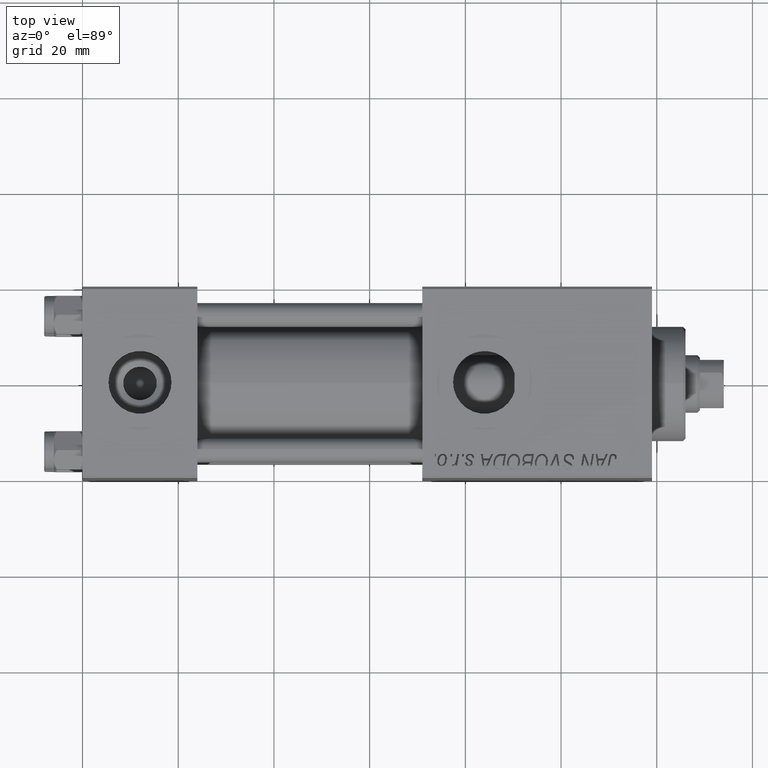
[diagram: clean part render]
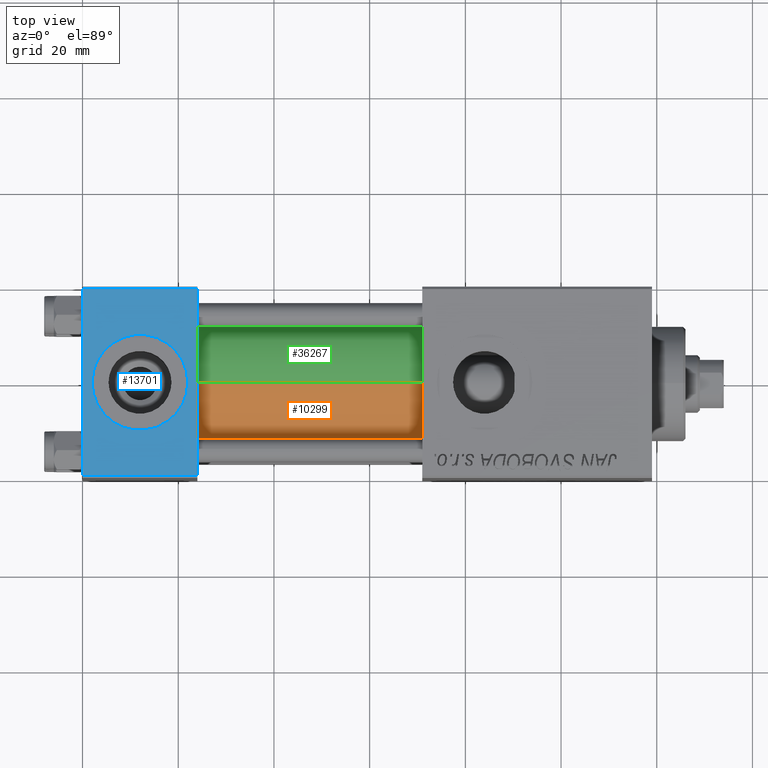
[diagram: same view with three faces highlighted in distinct colors, each labeled with its STEP entity id]
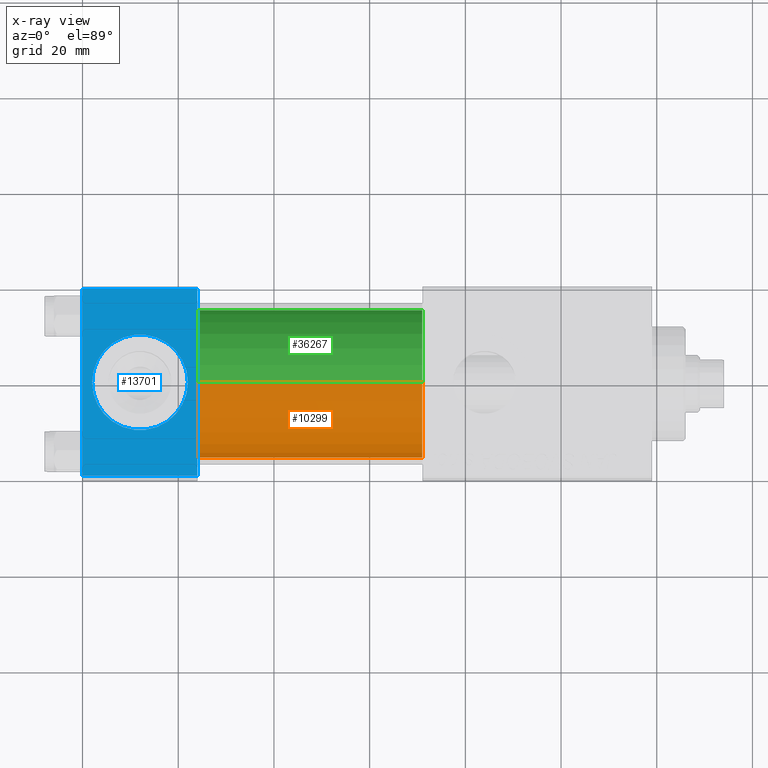
[diagram: x-ray of the same camera — body ghosted, the three highlighted faces saturated]
A machine part, top view with three faces highlighted in distinct colors.
The next image is the same camera in x-ray (body ghosted, the three faces saturated) — at least one of them is partly hidden behind the body in this view.
Their STEP definitions:

[orange] entity #10299 — the highlighted cylindrical surface (partial cylindrical patch) has radius 15.5 mm, axis along (-1, -0, -0).
#109 = LINE ( 'NONE', #5107, #15944 ) ;
#214 = ORIENTED_EDGE ( 'NONE', *, *, #13617, .T. ) ;
#247 = EDGE_CURVE ( 'NONE', #28785, #18094, #37705, .T. ) ;
#2215 = EDGE_LOOP ( 'NONE', ( #32558, #28471, #15158, #214 ) ) ;
#2857 = CARTESIAN_POINT ( 'NONE',  ( 71.00000000000001421, -7.038826752868131828E-16, -15.50000000000000000 ) ) ;
#4628 = CIRCLE ( 'NONE', #47648, 15.50000000000000000 ) ;
#5107 = CARTESIAN_POINT ( 'NONE',  ( 71.00000000000001421, -2.602085213965210642E-15, 15.50000000000000000 ) ) ;
#6233 = CIRCLE ( 'NONE', #49250, 15.50000000000000000 ) ;
#10299 = ADVANCED_FACE ( 'NONE', ( #20292 ), #30987, .T. ) ;
#10490 = VERTEX_POINT ( 'NONE', #45876 ) ;
#10665 = CARTESIAN_POINT ( 'NONE',  ( 71.00000000000001421, -7.038826752868131828E-16, -15.50000000000000000 ) ) ;
#13617 = EDGE_CURVE ( 'NONE', #49100, #18094, #6233, .T. ) ;
#13805 = EDGE_CURVE ( 'NONE', #10490, #49100, #109, .T. ) ;
#15158 = ORIENTED_EDGE ( 'NONE', *, *, #13805, .T. ) ;
#15159 = EDGE_CURVE ( 'NONE', #10490, #28785, #4628, .T. ) ;
#15723 = DIRECTION ( 'NONE',  ( 0.000000000000000000, 0.000000000000000000, 1.000000000000000000 ) ) ;
#15944 = VECTOR ( 'NONE', #47575, 1000.000000000000000 ) ;
#16423 = DIRECTION ( 'NONE',  ( 1.000000000000000000, 0.000000000000000000, 0.000000000000000000 ) ) ;
#18094 = VERTEX_POINT ( 'NONE', #23659 ) ;
#18850 = DIRECTION ( 'NONE',  ( -1.000000000000000000, -0.000000000000000000, -0.000000000000000000 ) ) ;
#20292 = FACE_OUTER_BOUND ( 'NONE', #2215, .T. ) ;
#23659 = CARTESIAN_POINT ( 'NONE',  ( 24.00000000000000000, -7.038826752868131828E-16, -15.50000000000000000 ) ) ;
#23793 = DIRECTION ( 'NONE',  ( 0.000000000000000000, 0.000000000000000000, 1.000000000000000000 ) ) ;
#23853 = DIRECTION ( 'NONE',  ( -1.000000000000000000, -0.000000000000000000, -0.000000000000000000 ) ) ;
#24961 = VECTOR ( 'NONE', #18850, 1000.000000000000000 ) ;
#27422 = CARTESIAN_POINT ( 'NONE',  ( 24.00000000000000000, -2.602085213965210642E-15, 15.50000000000000000 ) ) ;
#28471 = ORIENTED_EDGE ( 'NONE', *, *, #15159, .F. ) ;
#28785 = VERTEX_POINT ( 'NONE', #10665 ) ;
#29521 = DIRECTION ( 'NONE',  ( 1.000000000000000000, 0.000000000000000000, 0.000000000000000000 ) ) ;
#30874 = AXIS2_PLACEMENT_3D ( 'NONE', #39379, #23853, #15723 ) ;
#30987 = CYLINDRICAL_SURFACE ( 'NONE', #30874, 15.50000000000000000 ) ;
#32558 = ORIENTED_EDGE ( 'NONE', *, *, #247, .F. ) ;
#35519 = CARTESIAN_POINT ( 'NONE',  ( 24.00000000000000000, -2.602085213965210642E-15, 0.000000000000000000 ) ) ;
#37705 = LINE ( 'NONE', #2857, #24961 ) ;
#38568 = DIRECTION ( 'NONE',  ( 0.000000000000000000, 0.000000000000000000, -1.000000000000000000 ) ) ;
#39379 = CARTESIAN_POINT ( 'NONE',  ( 71.00000000000001421, -2.602085213965210642E-15, 0.000000000000000000 ) ) ;
#41205 = CARTESIAN_POINT ( 'NONE',  ( 71.00000000000001421, -2.602085213965210642E-15, 0.000000000000000000 ) ) ;
#45876 = CARTESIAN_POINT ( 'NONE',  ( 71.00000000000001421, -2.602085213965210642E-15, 15.50000000000000000 ) ) ;
#47575 = DIRECTION ( 'NONE',  ( -1.000000000000000000, -0.000000000000000000, -0.000000000000000000 ) ) ;
#47648 = AXIS2_PLACEMENT_3D ( 'NONE', #41205, #29521, #38568 ) ;
#49100 = VERTEX_POINT ( 'NONE', #27422 ) ;
#49250 = AXIS2_PLACEMENT_3D ( 'NONE', #35519, #16423, #23793 ) ;

[blue] entity #13701 — the highlighted planar face has unit normal (0, 0, -1).
#669 = ORIENTED_EDGE ( 'NONE', *, *, #14771, .T. ) ;
#935 = CARTESIAN_POINT ( 'NONE',  ( 22.00000000000000000, 1.540743955509788682E-30, 19.99999999999999645 ) ) ;
#1599 = CARTESIAN_POINT ( 'NONE',  ( 2.000000000000003553, 1.224646799147354440E-15, 19.99999999999999645 ) ) ;
#3159 = DIRECTION ( 'NONE',  ( 0.000000000000000000, 1.000000000000000000, 2.602085213965210149E-16 ) ) ;
#3935 = CARTESIAN_POINT ( 'NONE',  ( 24.00000000000000000, 19.50000000000000000, 20.00000000000000000 ) ) ;
#4272 = AXIS2_PLACEMENT_3D ( 'NONE', #7897, #27995, #23137 ) ;
#5006 = EDGE_CURVE ( 'NONE', #26411, #12805, #6276, .T. ) ;
#6276 = LINE ( 'NONE', #48496, #12952 ) ;
#6357 = VERTEX_POINT ( 'NONE', #27808 ) ;
#6507 = VERTEX_POINT ( 'NONE', #1599 ) ;
#7007 = AXIS2_PLACEMENT_3D ( 'NONE', #25312, #40825, #3159 ) ;
#7897 = CARTESIAN_POINT ( 'NONE',  ( 12.00000000000000000, 1.540743955509788682E-30, 19.99999999999999645 ) ) ;
#8770 = VECTOR ( 'NONE', #38181, 1000.000000000000000 ) ;
#9301 = FACE_OUTER_BOUND ( 'NONE', #24617, .T. ) ;
#9745 = DIRECTION ( 'NONE',  ( 1.000000000000000000, 0.000000000000000000, 0.000000000000000000 ) ) ;
#9984 = CARTESIAN_POINT ( 'NONE',  ( 0.000000000000000000, 20.00000000000000000, 20.00000000000000000 ) ) ;
#11889 = EDGE_CURVE ( 'NONE', #26411, #6357, #49581, .T. ) ;
#12805 = VERTEX_POINT ( 'NONE', #32070 ) ;
#12952 = VECTOR ( 'NONE', #21277, 1000.000000000000000 ) ;
#13460 = EDGE_LOOP ( 'NONE', ( #40323, #34057 ) ) ;
#13701 = ADVANCED_FACE ( 'NONE', ( #44148, #9301 ), #20982, .F. ) ;
#14771 = EDGE_CURVE ( 'NONE', #36256, #6357, #43589, .T. ) ;
#15484 = DIRECTION ( 'NONE',  ( 0.000000000000000000, -1.000000000000000000, -2.602085213965210149E-16 ) ) ;
#17978 = EDGE_CURVE ( 'NONE', #12805, #36256, #29318, .T. ) ;
#18789 = CARTESIAN_POINT ( 'NONE',  ( 24.00000000000000000, 20.00000000000000000, 20.00000000000000000 ) ) ;
#20982 = PLANE ( 'NONE',  #7007 ) ;
#21277 = DIRECTION ( 'NONE',  ( -1.000000000000000000, 0.000000000000000000, 0.000000000000000000 ) ) ;
#21436 = EDGE_CURVE ( 'NONE', #42310, #6507, #25023, .T. ) ;
#23137 = DIRECTION ( 'NONE',  ( 1.000000000000000000, 0.000000000000000000, 0.000000000000000000 ) ) ;
#23689 = DIRECTION ( 'NONE',  ( 0.000000000000000000, 0.000000000000000000, 1.000000000000000000 ) ) ;
#23759 = CIRCLE ( 'NONE', #4272, 9.999999999999998224 ) ;
#24617 = EDGE_LOOP ( 'NONE', ( #34245, #669, #36846, #34147 ) ) ;
#25023 = CIRCLE ( 'NONE', #30678, 9.999999999999998224 ) ;
#25312 = CARTESIAN_POINT ( 'NONE',  ( 24.00000000000000000, 20.00000000000000000, 20.00000000000000000 ) ) ;
#26411 = VERTEX_POINT ( 'NONE', #3935 ) ;
#27808 = CARTESIAN_POINT ( 'NONE',  ( 24.00000000000000000, -19.49999999999999289, 19.99999999999998934 ) ) ;
#27995 = DIRECTION ( 'NONE',  ( 0.000000000000000000, 0.000000000000000000, 1.000000000000000000 ) ) ;
#29318 = LINE ( 'NONE', #9984, #8770 ) ;
#30678 = AXIS2_PLACEMENT_3D ( 'NONE', #31085, #23689, #39222 ) ;
#31085 = CARTESIAN_POINT ( 'NONE',  ( 12.00000000000000000, 1.540743955509788682E-30, 19.99999999999999645 ) ) ;
#32070 = CARTESIAN_POINT ( 'NONE',  ( 0.000000000000000000, 19.50000000000000000, 20.00000000000000000 ) ) ;
#32896 = CARTESIAN_POINT ( 'NONE',  ( 24.00000000000000000, -19.49999999999999289, 19.99999999999998934 ) ) ;
#34057 = ORIENTED_EDGE ( 'NONE', *, *, #45200, .F. ) ;
#34147 = ORIENTED_EDGE ( 'NONE', *, *, #5006, .T. ) ;
#34245 = ORIENTED_EDGE ( 'NONE', *, *, #17978, .T. ) ;
#35501 = VECTOR ( 'NONE', #9745, 1000.000000000000000 ) ;
#36256 = VERTEX_POINT ( 'NONE', #36532 ) ;
#36532 = CARTESIAN_POINT ( 'NONE',  ( 0.000000000000000000, -19.49999999999999289, 19.99999999999998934 ) ) ;
#36846 = ORIENTED_EDGE ( 'NONE', *, *, #11889, .F. ) ;
#38181 = DIRECTION ( 'NONE',  ( 0.000000000000000000, -1.000000000000000000, -2.602085213965210149E-16 ) ) ;
#39222 = DIRECTION ( 'NONE',  ( 1.000000000000000000, 0.000000000000000000, 0.000000000000000000 ) ) ;
#40323 = ORIENTED_EDGE ( 'NONE', *, *, #21436, .F. ) ;
#40825 = DIRECTION ( 'NONE',  ( 0.000000000000000000, 2.602085213965210149E-16, -1.000000000000000000 ) ) ;
#42310 = VERTEX_POINT ( 'NONE', #935 ) ;
#42399 = VECTOR ( 'NONE', #15484, 1000.000000000000000 ) ;
#43589 = LINE ( 'NONE', #32896, #35501 ) ;
#44148 = FACE_BOUND ( 'NONE', #13460, .T. ) ;
#45200 = EDGE_CURVE ( 'NONE', #6507, #42310, #23759, .T. ) ;
#48496 = CARTESIAN_POINT ( 'NONE',  ( 0.000000000000000000, 19.50000000000000000, 20.00000000000000000 ) ) ;
#49581 = LINE ( 'NONE', #18789, #42399 ) ;

[green] entity #36267 — the highlighted cylindrical surface (partial cylindrical patch) has radius 15.5 mm, axis along (-1, -0, -0).
#109 = LINE ( 'NONE', #5107, #15944 ) ;
#247 = EDGE_CURVE ( 'NONE', #28785, #18094, #37705, .T. ) ;
#2857 = CARTESIAN_POINT ( 'NONE',  ( 71.00000000000001421, -7.038826752868131828E-16, -15.50000000000000000 ) ) ;
#5107 = CARTESIAN_POINT ( 'NONE',  ( 71.00000000000001421, -2.602085213965210642E-15, 15.50000000000000000 ) ) ;
#5201 = CARTESIAN_POINT ( 'NONE',  ( 71.00000000000001421, -2.602085213965210642E-15, 0.000000000000000000 ) ) ;
#7326 = EDGE_CURVE ( 'NONE', #18094, #49100, #50254, .T. ) ;
#7931 = ORIENTED_EDGE ( 'NONE', *, *, #13805, .F. ) ;
#8952 = ORIENTED_EDGE ( 'NONE', *, *, #7326, .T. ) ;
#10490 = VERTEX_POINT ( 'NONE', #45876 ) ;
#10573 = EDGE_LOOP ( 'NONE', ( #37805, #20916, #8952, #7931 ) ) ;
#10665 = CARTESIAN_POINT ( 'NONE',  ( 71.00000000000001421, -7.038826752868131828E-16, -15.50000000000000000 ) ) ;
#11308 = DIRECTION ( 'NONE',  ( 0.000000000000000000, 0.000000000000000000, 1.000000000000000000 ) ) ;
#12921 = AXIS2_PLACEMENT_3D ( 'NONE', #18358, #15056, #46071 ) ;
#13805 = EDGE_CURVE ( 'NONE', #10490, #49100, #109, .T. ) ;
#15056 = DIRECTION ( 'NONE',  ( 1.000000000000000000, 0.000000000000000000, 0.000000000000000000 ) ) ;
#15944 = VECTOR ( 'NONE', #47575, 1000.000000000000000 ) ;
#17185 = FACE_OUTER_BOUND ( 'NONE', #10573, .T. ) ;
#17684 = CYLINDRICAL_SURFACE ( 'NONE', #44088, 15.50000000000000000 ) ;
#18094 = VERTEX_POINT ( 'NONE', #23659 ) ;
#18358 = CARTESIAN_POINT ( 'NONE',  ( 24.00000000000000000, -2.602085213965210642E-15, 0.000000000000000000 ) ) ;
#18850 = DIRECTION ( 'NONE',  ( -1.000000000000000000, -0.000000000000000000, -0.000000000000000000 ) ) ;
#20916 = ORIENTED_EDGE ( 'NONE', *, *, #247, .T. ) ;
#23659 = CARTESIAN_POINT ( 'NONE',  ( 24.00000000000000000, -7.038826752868131828E-16, -15.50000000000000000 ) ) ;
#24961 = VECTOR ( 'NONE', #18850, 1000.000000000000000 ) ;
#27064 = CIRCLE ( 'NONE', #47375, 15.50000000000000000 ) ;
#27422 = CARTESIAN_POINT ( 'NONE',  ( 24.00000000000000000, -2.602085213965210642E-15, 15.50000000000000000 ) ) ;
#28601 = DIRECTION ( 'NONE',  ( 0.000000000000000000, 0.000000000000000000, -1.000000000000000000 ) ) ;
#28785 = VERTEX_POINT ( 'NONE', #10665 ) ;
#28853 = DIRECTION ( 'NONE',  ( 1.000000000000000000, 0.000000000000000000, 0.000000000000000000 ) ) ;
#28899 = CARTESIAN_POINT ( 'NONE',  ( 71.00000000000001421, -2.602085213965210642E-15, 0.000000000000000000 ) ) ;
#33226 = DIRECTION ( 'NONE',  ( -1.000000000000000000, -0.000000000000000000, -0.000000000000000000 ) ) ;
#36267 = ADVANCED_FACE ( 'NONE', ( #17185 ), #17684, .T. ) ;
#37705 = LINE ( 'NONE', #2857, #24961 ) ;
#37805 = ORIENTED_EDGE ( 'NONE', *, *, #46374, .F. ) ;
#44088 = AXIS2_PLACEMENT_3D ( 'NONE', #28899, #33226, #11308 ) ;
#45876 = CARTESIAN_POINT ( 'NONE',  ( 71.00000000000001421, -2.602085213965210642E-15, 15.50000000000000000 ) ) ;
#46071 = DIRECTION ( 'NONE',  ( 0.000000000000000000, 0.000000000000000000, 1.000000000000000000 ) ) ;
#46374 = EDGE_CURVE ( 'NONE', #28785, #10490, #27064, .T. ) ;
#47375 = AXIS2_PLACEMENT_3D ( 'NONE', #5201, #28853, #28601 ) ;
#47575 = DIRECTION ( 'NONE',  ( -1.000000000000000000, -0.000000000000000000, -0.000000000000000000 ) ) ;
#49100 = VERTEX_POINT ( 'NONE', #27422 ) ;
#50254 = CIRCLE ( 'NONE', #12921, 15.50000000000000000 ) ;